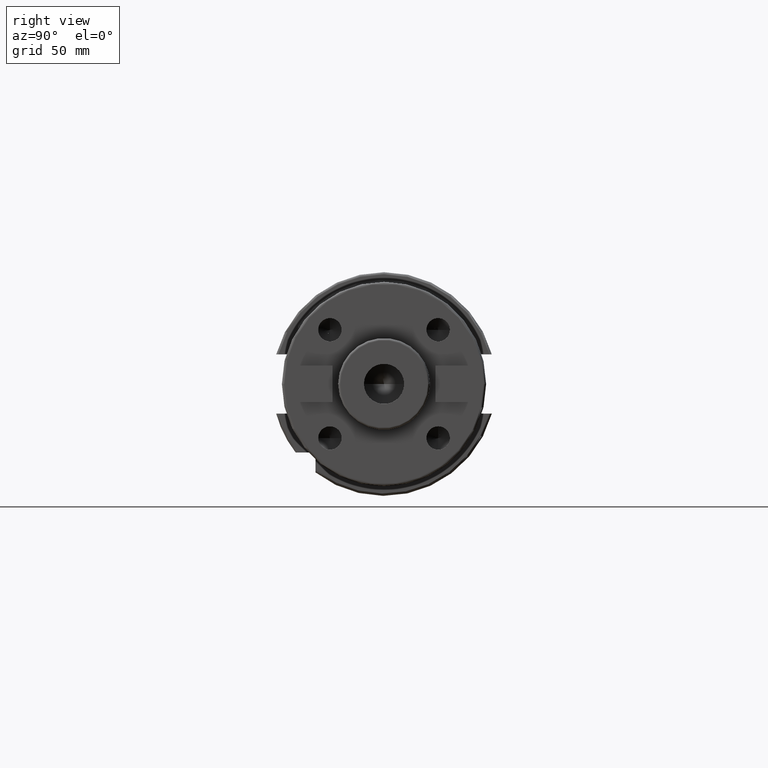
[diagram: clean part render]
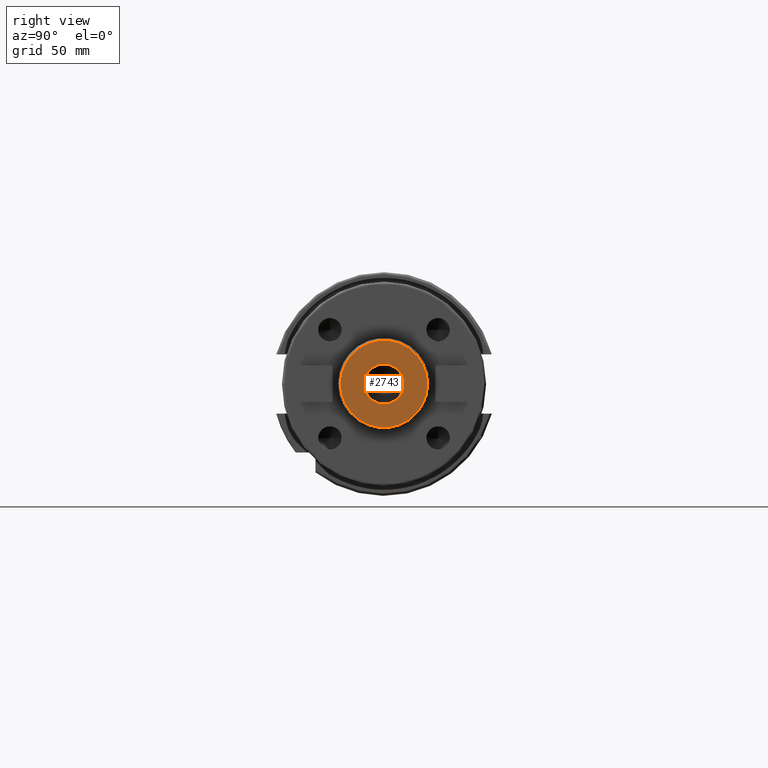
[diagram: same view with one face highlighted and labeled with its STEP entity id]
A machine part, right view. The second image highlights one B-rep face of the part: STEP entity #2743.
In plain terms, the highlighted planar face has unit normal (1, 0, 0).
Its self-contained STEP definition (entity closure, byte-faithful):
#565=CARTESIAN_POINT('',(1.87E2,0.E0,0.E0));
#566=DIRECTION('',(-1.E0,0.E0,0.E0));
#567=DIRECTION('',(0.E0,1.E0,0.E0));
#568=AXIS2_PLACEMENT_3D('',#565,#566,#567);
#570=CARTESIAN_POINT('',(1.87E2,0.E0,0.E0));
#571=DIRECTION('',(-1.E0,0.E0,0.E0));
#572=DIRECTION('',(0.E0,-1.E0,0.E0));
#573=AXIS2_PLACEMENT_3D('',#570,#571,#572);
#575=CARTESIAN_POINT('',(1.87E2,0.E0,0.E0));
#576=DIRECTION('',(1.E0,0.E0,0.E0));
#577=DIRECTION('',(0.E0,-1.E0,0.E0));
#578=AXIS2_PLACEMENT_3D('',#575,#576,#577);
#580=CARTESIAN_POINT('',(1.87E2,0.E0,0.E0));
#581=DIRECTION('',(1.E0,0.E0,0.E0));
#582=DIRECTION('',(0.E0,1.E0,0.E0));
#583=AXIS2_PLACEMENT_3D('',#580,#581,#582);
#1991=CARTESIAN_POINT('',(1.87E2,-8.75E0,0.E0));
#1992=CARTESIAN_POINT('',(1.87E2,8.75E0,0.E0));
#1993=VERTEX_POINT('',#1991);
#1994=VERTEX_POINT('',#1992);
#1999=CARTESIAN_POINT('',(1.87E2,1.9E1,0.E0));
#2000=CARTESIAN_POINT('',(1.87E2,-1.9E1,0.E0));
#2001=VERTEX_POINT('',#1999);
#2002=VERTEX_POINT('',#2000);
#2728=CARTESIAN_POINT('',(1.87E2,0.E0,0.E0));
#2729=DIRECTION('',(1.E0,0.E0,0.E0));
#2730=DIRECTION('',(0.E0,-1.E0,0.E0));
#2731=AXIS2_PLACEMENT_3D('',#2728,#2729,#2730);
#2732=PLANE('',#2731);
#2733=ORIENTED_EDGE('',*,*,#2710,.T.);
#2734=ORIENTED_EDGE('',*,*,#2695,.T.);
#2735=EDGE_LOOP('',(#2733,#2734));
#2736=FACE_OUTER_BOUND('',#2735,.F.);
#2738=ORIENTED_EDGE('',*,*,#2737,.T.);
#2740=ORIENTED_EDGE('',*,*,#2739,.T.);
#2741=EDGE_LOOP('',(#2738,#2740));
#2742=FACE_BOUND('',#2741,.F.);
#2743=ADVANCED_FACE('',(#2736,#2742),#2732,.T.);
#569=CIRCLE('',#568,1.9E1);
#574=CIRCLE('',#573,1.9E1);
#579=CIRCLE('',#578,8.75E0);
#584=CIRCLE('',#583,8.75E0);
#2695=EDGE_CURVE('',#2002,#2001,#574,.T.);
#2710=EDGE_CURVE('',#2001,#2002,#569,.T.);
#2737=EDGE_CURVE('',#1993,#1994,#579,.T.);
#2739=EDGE_CURVE('',#1994,#1993,#584,.T.);